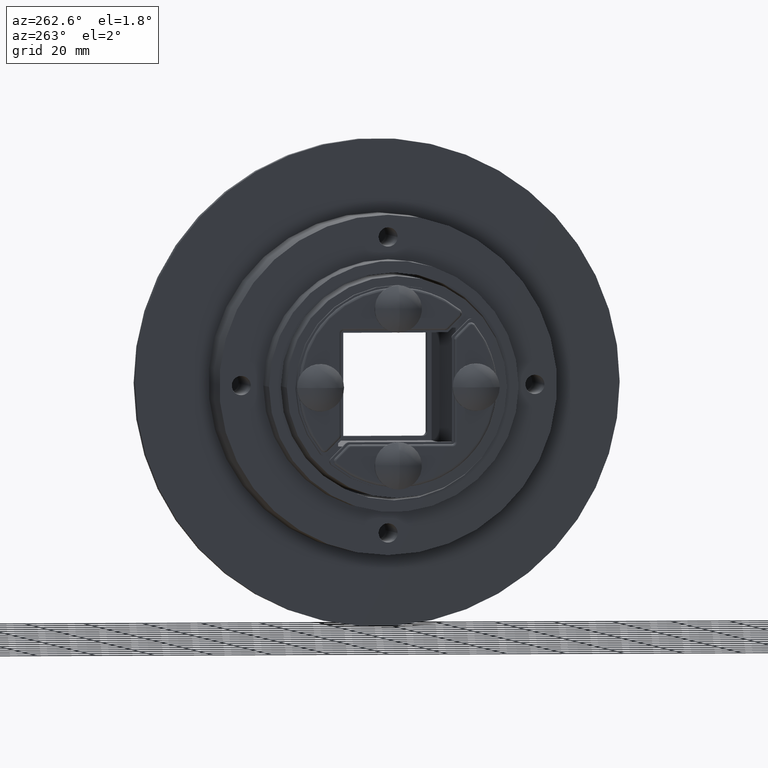
[diagram: clean part render]
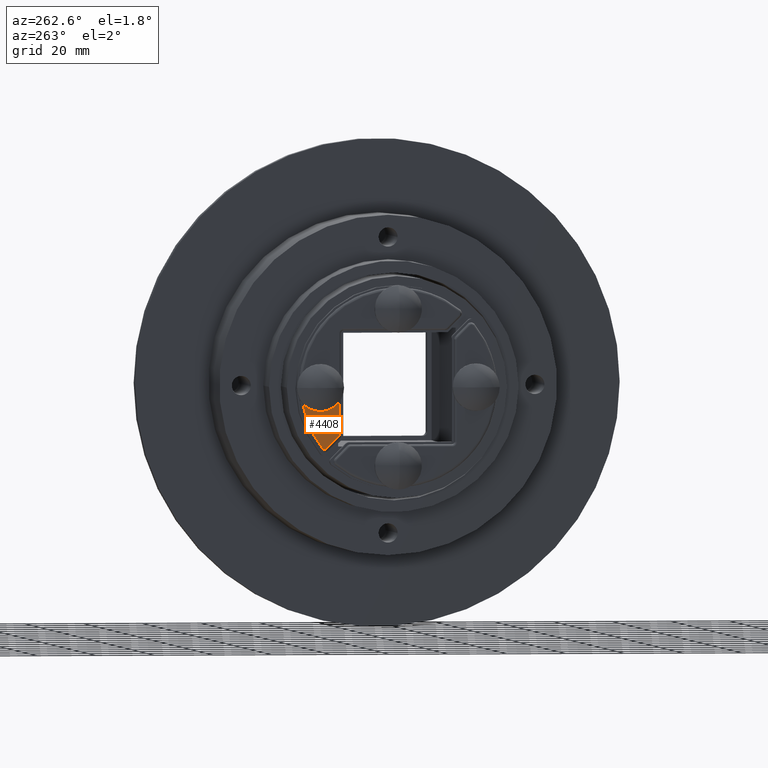
[diagram: same view with one face highlighted and labeled with its STEP entity id]
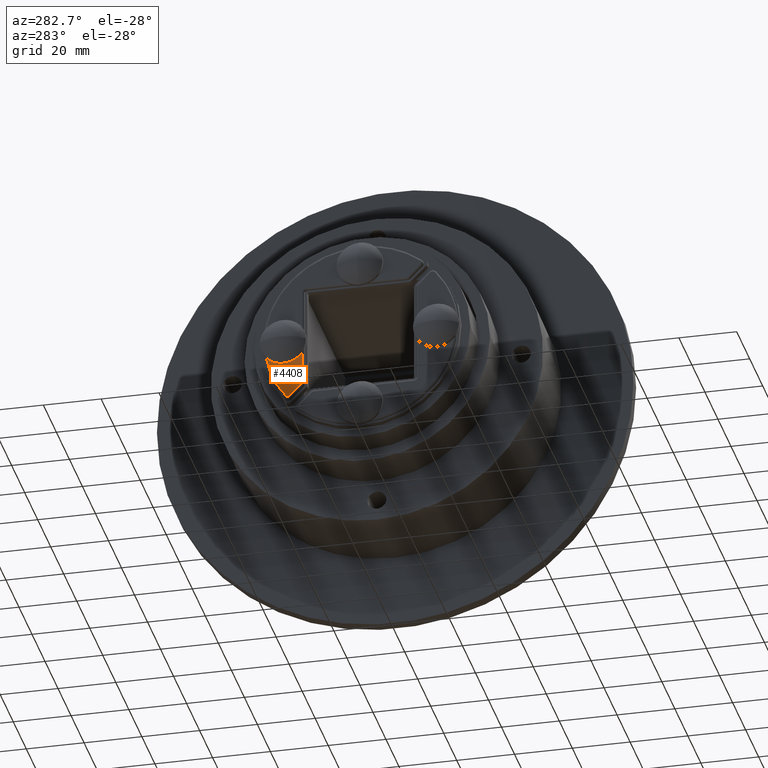
[diagram: same view with one face highlighted and labeled with its STEP entity id]
A machine part, auxiliary view. The second image highlights one B-rep face of the part: STEP entity #4408.
A second angle (auxiliary view) of the same face is appended — the face is thin or edge-on in the first view.
In plain terms, the highlighted planar face has unit normal (1, 0, -0).
Its self-contained STEP definition (entity closure, byte-faithful):
#1910=CARTESIAN_POINT('',(-66.0,25.525499523054837,-20.757140316010002));
#1911=VERTEX_POINT('',#1910);
#1919=CARTESIAN_POINT('',(-66.000000000000014,32.465283018867936,-5.330609580977188));
#1920=VERTEX_POINT('',#1919);
#1921=CARTESIAN_POINT('',(-66.0,1.094764E-046,0.0));
#1922=DIRECTION('',(1.0,0.0,0.0));
#1923=DIRECTION('',(0.0,0.707106781186548,0.707106781186547));
#1924=AXIS2_PLACEMENT_3D('',#1921,#1922,#1923);
#1925=CIRCLE('',#1924,32.900000000000006);
#1926=EDGE_CURVE('',#1911,#1920,#1925,.T.);
#1971=CARTESIAN_POINT('',(-66.0,20.305025253169411,-16.628069990999457));
#1972=VERTEX_POINT('',#1971);
#1980=CARTESIAN_POINT('',(-66.0,24.487429041691186,-20.810473779521228));
#1981=VERTEX_POINT('',#1980);
#1982=CARTESIAN_POINT('',(-66.0,20.305025253169411,-16.628069990999457));
#1983=DIRECTION('',(0.0,0.707106781186548,-0.707106781186547));
#1984=VECTOR('',#1983,5.914812161048106);
#1985=LINE('',#1982,#1984);
#1986=EDGE_CURVE('',#1972,#1981,#1985,.T.);
#2072=CARTESIAN_POINT('',(-66.0,24.982403788521768,-21.015499032690645));
#2073=VERTEX_POINT('',#2072);
#2081=CARTESIAN_POINT('',(-66.0,24.982403788521768,-20.315499032690649));
#2082=DIRECTION('',(1.000000000000000,0.0,0.0));
#2083=DIRECTION('',(0.0,0.051309822166898,-0.998682783545006));
#2084=AXIS2_PLACEMENT_3D('',#2081,#2082,#2083);
#2085=CIRCLE('',#2084,0.699999999999997);
#2086=EDGE_CURVE('',#2073,#1911,#2085,.T.);
#2132=CARTESIAN_POINT('',(-66.0,20.099999999999994,-4.799999999999992));
#2133=VERTEX_POINT('',#2132);
#2140=CARTESIAN_POINT('',(-66.0,20.099999999999994,-16.133095244168871));
#2141=VERTEX_POINT('',#2140);
#2142=CARTESIAN_POINT('',(-66.0,20.099999999999994,-4.799999999999992));
#2143=DIRECTION('',(0.0,0.0,-1.0));
#2144=VECTOR('',#2143,11.333095244168879);
#2145=LINE('',#2142,#2144);
#2146=EDGE_CURVE('',#2133,#2141,#2145,.T.);
#4124=CARTESIAN_POINT('',(-66.0,26.500000000000000,-5.884182E-015));
#4125=DIRECTION('',(1.0,0.0,0.0));
#4126=DIRECTION('',(0.0,-1.0,0.0));
#4127=AXIS2_PLACEMENT_3D('',#4124,#4125,#4126);
#4128=CIRCLE('',#4127,7.999999999999996);
#4129=EDGE_CURVE('',#2133,#1920,#4128,.T.);
#4382=CARTESIAN_POINT('',(-66.0,11.647704132465787,11.647704132465735));
#4383=DIRECTION('',(1.0,0.0,0.0));
#4384=DIRECTION('',(0.0,0.0,-1.0));
#4385=AXIS2_PLACEMENT_3D('',#4382,#4383,#4384);
#4386=PLANE('',#4385);
#4387=ORIENTED_EDGE('',*,*,#4129,.T.);
#4388=ORIENTED_EDGE('',*,*,#1926,.F.);
#4389=ORIENTED_EDGE('',*,*,#2086,.F.);
#4390=CARTESIAN_POINT('',(-66.0,24.982403788521768,-20.315499032690649));
#4391=DIRECTION('',(1.000000000000000,0.0,0.0));
#4392=DIRECTION('',(0.0,0.051309822166898,-0.998682783545006));
#4393=AXIS2_PLACEMENT_3D('',#4390,#4391,#4392);
#4394=CIRCLE('',#4393,0.699999999999997);
#4395=EDGE_CURVE('',#1981,#2073,#4394,.T.);
#4396=ORIENTED_EDGE('',*,*,#4395,.F.);
#4397=ORIENTED_EDGE('',*,*,#1986,.F.);
#4398=CARTESIAN_POINT('',(-66.0,20.800000000000001,-16.133095244168871));
#4399=DIRECTION('',(1.000000000000000,0.0,0.0));
#4400=DIRECTION('',(0.0,-0.923879532511287,-0.382683432365088));
#4401=AXIS2_PLACEMENT_3D('',#4398,#4399,#4400);
#4402=CIRCLE('',#4401,0.700000000000007);
#4403=EDGE_CURVE('',#2141,#1972,#4402,.T.);
#4404=ORIENTED_EDGE('',*,*,#4403,.F.);
#4405=ORIENTED_EDGE('',*,*,#2146,.F.);
#4406=EDGE_LOOP('',(#4387,#4388,#4389,#4396,#4397,#4404,#4405));
#4407=FACE_OUTER_BOUND('',#4406,.T.);
#4408=ADVANCED_FACE('',(#4407),#4386,.F.);